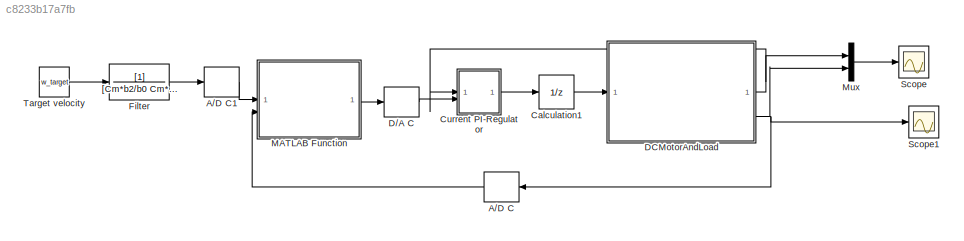
MODEL slx_c8233b17a7fb
KIND model
CONFIG AbsTol = auto
CONFIG EnableMultiTasking = off
CONFIG FixedStep = auto
CONFIG MaxStep = 1e-4
CONFIG MinStep = auto
CONFIG RelTol = 1e-3
CONFIG SampleTimeConstraint = Unconstrained
CONFIG SolverName = ode23t
CONFIG StartTime = 0.0
CONFIG StopTime = Tmdl
BLOCK [ZeroOrderHold] A//D C
  SampleTime = To
BLOCK [ZeroOrderHold] A//D C1
  SampleTime = To
BLOCK [UnitDelay] Calculation1
  HasFrameUpgradeWarning = on
  SampleTime = To/1000
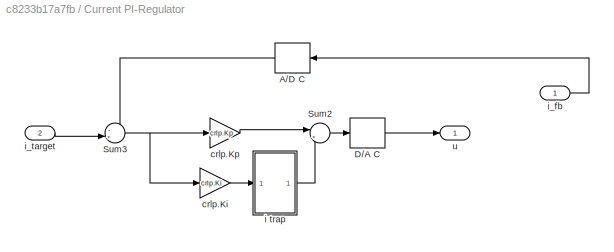
BLOCK [SubSystem] Current PI-Regulator
BLOCK [ZeroOrderHold] Current PI-Regulator/A//D C
  NameLocation = top
  SampleTime = To
BLOCK [ZeroOrderHold] Current PI-Regulator/D//A C
  SampleTime = To
BLOCK [Sum] Current PI-Regulator/Sum2
  Inputs = |++
BLOCK [Sum] Current PI-Regulator/Sum3
  Inputs = -+|
BLOCK [Gain] Current PI-Regulator/crlp.Ki
  Gain = crlp.Ki
BLOCK [Gain] Current PI-Regulator/crlp.Kp
  Gain = crlp.Kp
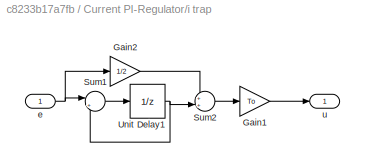
BLOCK [SubSystem] Current PI-Regulator/i trap
BLOCK [Gain] Current PI-Regulator/i trap/Gain1
  Gain = To
BLOCK [Gain] Current PI-Regulator/i trap/Gain2
  Gain = 1/2
BLOCK [Sum] Current PI-Regulator/i trap/Sum1
  Inputs = |++
BLOCK [Sum] Current PI-Regulator/i trap/Sum2
  Inputs = ++|
BLOCK [UnitDelay] Current PI-Regulator/i trap/Unit Delay1
  HasFrameUpgradeWarning = on
  SampleTime = To
BLOCK [Inport] Current PI-Regulator/i trap/e
BLOCK [Outport] Current PI-Regulator/i trap/u
BLOCK [Inport] Current PI-Regulator/i_fb
BLOCK [Inport] Current PI-Regulator/i_target
  Port = 2
BLOCK [Outport] Current PI-Regulator/u
BLOCK [ZeroOrderHold] D//A C
  SampleTime = To
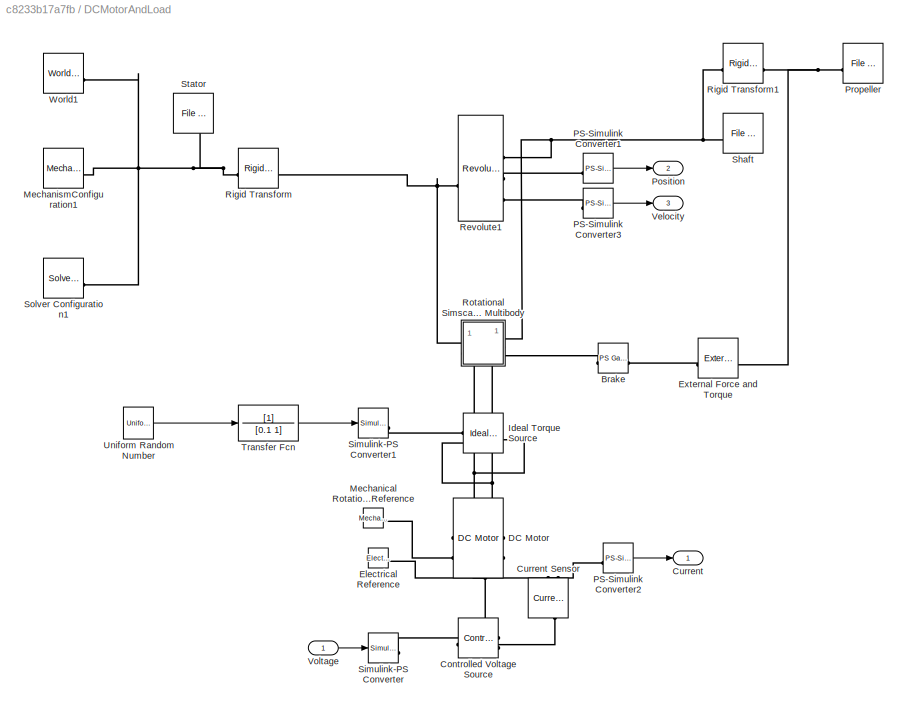
BLOCK [SubSystem] DCMotorAndLoad
BLOCK [Reference] DCMotorAndLoad/Brake  REF=fl_ps_legacy_lib/Legacy Physical
Signals/Functions/PS Gain
  SourceBlock = fl_ps_legacy_lib/Legacy Physical\nSignals/Functions/PS Gain
  SourceType = PS Gain
BLOCK [Reference] DCMotorAndLoad/Controlled Voltage Source  REF=fl_lib/Electrical/Electrical Sources/Controlled Voltage
Source
  NameLocation = top
  SourceBlock = fl_lib/Electrical/Electrical Sources/Controlled Voltage\nSource
  SourceType = Controlled Voltage\nSource
BLOCK [Outport] DCMotorAndLoad/Current
  VectorParamsAs1DForOutWhenUnconnected = off
BLOCK [Reference] DCMotorAndLoad/Current Sensor  REF=fl_lib/Electrical/Electrical Sensors/Current Sensor
  NameLocation = right
  SourceBlock = fl_lib/Electrical/Electrical Sensors/Current Sensor
  SourceType = Current Sensor
BLOCK [Reference] DCMotorAndLoad/DC Motor  REF=ee_lib/Electromechanical/Brushed Motors/DC Motor
  NameLocation = top
  SourceBlock = ee_lib/Electromechanical/Brushed Motors/DC Motor
  SourceType = DC Motor
BLOCK [Reference] DCMotorAndLoad/Electrical Reference  REF=fl_lib/Electrical/Electrical Elements/Electrical Reference
  SourceBlock = fl_lib/Electrical/Electrical Elements/Electrical Reference
  SourceType = Electrical Reference
BLOCK [Reference] DCMotorAndLoad/External Force and Torque  REF=sm_lib/Forces and
Torques/External Force
and Torque
  SourceBlock = sm_lib/Forces and\nTorques/External Force\nand Torque
  SourceType = External Force\nand Torque
BLOCK [Reference] DCMotorAndLoad/Ideal Torque Source  REF=fl_lib/Mechanical/Mechanical Sources/Ideal Torque Source
  SourceBlock = fl_lib/Mechanical/Mechanical Sources/Ideal Torque Source
  SourceType = Ideal Torque Source
BLOCK [Reference] DCMotorAndLoad/Mechanical Rotational Reference  REF=fl_lib/Mechanical/Rotational Elements/Mechanical
Rotational Reference
  NameLocation = top
  SourceBlock = fl_lib/Mechanical/Rotational Elements/Mechanical\nRotational Reference
  SourceType = Mechanical\nRotational Reference
BLOCK [Reference] DCMotorAndLoad/MechanismConfiguration1  REF=sm_lib/Utilities/Mechanism
Configuration
  SourceBlock = sm_lib/Utilities/Mechanism\nConfiguration
  SourceType = Mechanism\nConfiguration
BLOCK [Reference] DCMotorAndLoad/PS-Simulink Converter1  REF=nesl_utility/PS-Simulink
Converter
  SourceBlock = nesl_utility/PS-Simulink\nConverter
  SourceType = PS-Simulink\nConverter
BLOCK [Reference] DCMotorAndLoad/PS-Simulink Converter2  REF=nesl_utility/PS-Simulink
Converter
  SourceBlock = nesl_utility/PS-Simulink\nConverter
  SourceType = PS-Simulink\nConverter
BLOCK [Reference] DCMotorAndLoad/PS-Simulink Converter3  REF=nesl_utility/PS-Simulink
Converter
  SourceBlock = nesl_utility/PS-Simulink\nConverter
  SourceType = PS-Simulink\nConverter
BLOCK [Outport] DCMotorAndLoad/Position
  Port = 2
  VectorParamsAs1DForOutWhenUnconnected = off
BLOCK [Reference] DCMotorAndLoad/Propeller  REF=sm_lib/Body Elements/File Solid
  NameLocation = top
  SourceBlock = sm_lib/Body Elements/File Solid
  SourceType = File Solid
BLOCK [Reference] DCMotorAndLoad/Revolute1  REF=sm_lib/Joints/Revolute Joint
  SourceBlock = sm_lib/Joints/Revolute Joint
  SourceType = Revolute Joint
BLOCK [Reference] DCMotorAndLoad/Rigid Transform  REF=sm_lib/Frames and
Transforms/Rigid
Transform
  SourceBlock = sm_lib/Frames and\nTransforms/Rigid\nTransform
  SourceType = Rigid\nTransform
BLOCK [Reference] DCMotorAndLoad/Rigid Transform1  REF=sm_lib/Frames and
Transforms/Rigid
Transform
  SourceBlock = sm_lib/Frames and\nTransforms/Rigid\nTransform
  SourceType = Rigid\nTransform
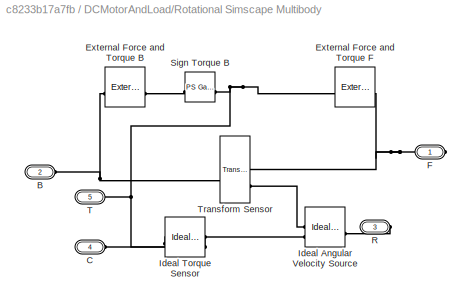
BLOCK [SubSystem] DCMotorAndLoad/Rotational Simscape Multibody
BLOCK [PMIOPort] DCMotorAndLoad/Rotational Simscape Multibody/B
  Port = 2
  Side = Left
BLOCK [PMIOPort] DCMotorAndLoad/Rotational Simscape Multibody/C
  Port = 4
  Side = Left
BLOCK [Reference] DCMotorAndLoad/Rotational Simscape Multibody/External Force and Torque B  REF=sm_lib/Forces and
Torques/External Force
and Torque
  NameLocation = top
  SourceBlock = sm_lib/Forces and\nTorques/External Force\nand Torque
  SourceType = External Force\nand Torque
BLOCK [Reference] DCMotorAndLoad/Rotational Simscape Multibody/External Force and Torque F  REF=sm_lib/Forces and
Torques/External Force
and Torque
  NameLocation = top
  SourceBlock = sm_lib/Forces and\nTorques/External Force\nand Torque
  SourceType = External Force\nand Torque
BLOCK [PMIOPort] DCMotorAndLoad/Rotational Simscape Multibody/F
  Side = Right
BLOCK [Reference] DCMotorAndLoad/Rotational Simscape Multibody/Ideal Angular Velocity Source  REF=fl_lib/Mechanical/Mechanical Sources/Ideal Angular
Velocity Source
  SourceBlock = fl_lib/Mechanical/Mechanical Sources/Ideal Angular\nVelocity Source
  SourceType = Ideal Angular\nVelocity Source
BLOCK [Reference] DCMotorAndLoad/Rotational Simscape Multibody/Ideal Torque Sensor  REF=fl_lib/Mechanical/Mechanical Sensors/Ideal Torque Sensor
  SourceBlock = fl_lib/Mechanical/Mechanical Sensors/Ideal Torque Sensor
  SourceType = Ideal Torque Sensor
BLOCK [PMIOPort] DCMotorAndLoad/Rotational Simscape Multibody/R
  Port = 3
  Side = Right
BLOCK [Reference] DCMotorAndLoad/Rotational Simscape Multibody/Sign Torque B  REF=fl_ps_legacy_lib/Legacy Physical
Signals/Functions/PS Gain
  SourceBlock = fl_ps_legacy_lib/Legacy Physical\nSignals/Functions/PS Gain
  SourceType = PS Gain
BLOCK [PMIOPort] DCMotorAndLoad/Rotational Simscape Multibody/T
  Port = 5
  Side = Right
BLOCK [Reference] DCMotorAndLoad/Rotational Simscape Multibody/Transform Sensor  REF=sm_lib/Frames and
Transforms/Transform
Sensor
  SourceBlock = sm_lib/Frames and\nTransforms/Transform\nSensor
  SourceType = Transform\nSensor
BLOCK [Reference] DCMotorAndLoad/Shaft  REF=sm_lib/Body Elements/File Solid
  SourceBlock = sm_lib/Body Elements/File Solid
  SourceType = File Solid
BLOCK [Reference] DCMotorAndLoad/Simulink-PS Converter  REF=nesl_utility/Simulink-PS
Converter
  SourceBlock = nesl_utility/Simulink-PS\nConverter
  SourceType = Simulink-PS\nConverter
BLOCK [Reference] DCMotorAndLoad/Simulink-PS Converter1  REF=nesl_utility/Simulink-PS
Converter
  SourceBlock = nesl_utility/Simulink-PS\nConverter
  SourceType = Simulink-PS\nConverter
BLOCK [Reference] DCMotorAndLoad/Solver Configuration1  REF=nesl_utility/Solver
Configuration
  SourceBlock = nesl_utility/Solver\nConfiguration
  SourceType = Solver\nConfiguration
BLOCK [Reference] DCMotorAndLoad/Stator  REF=sm_lib/Body Elements/File Solid
  NameLocation = left
  SourceBlock = sm_lib/Body Elements/File Solid
  SourceType = File Solid
BLOCK [TransferFcn] DCMotorAndLoad/Transfer Fcn
  Denominator = [0.1 1]
BLOCK [UniformRandomNumber] DCMotorAndLoad/Uniform Random Number
  SampleTime = 0.001
BLOCK [Outport] DCMotorAndLoad/Velocity
  Port = 3
  VectorParamsAs1DForOutWhenUnconnected = off
BLOCK [Inport] DCMotorAndLoad/Voltage
BLOCK [Reference] DCMotorAndLoad/World1  REF=sm_lib/Frames and
Transforms/World Frame
  SourceBlock = sm_lib/Frames and\nTransforms/World Frame
  SourceType = World Frame
BLOCK [TransferFcn] Filter
  Denominator = [Cm*b2/b0 Cm*b1/b0 Cm]
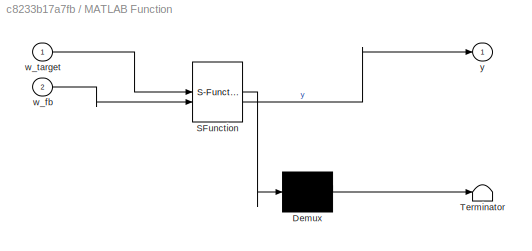
BLOCK [SubSystem] MATLAB Function
  ErrorFcn = Stateflow.Translate.translate
  PermitHierarchicalResolution = ExplicitOnly
  SFBlockType = MATLAB Function
  TreatAsAtomicUnit = on
BLOCK [Demux] MATLAB Function/ Demux 
  Outputs = 1
BLOCK [S-Function] MATLAB Function/ SFunction 
  EnableBusSupport = on
  FunctionName = sf_sfun
  Parameters = Kd,Ki,Kp,To,Tur
  PortCounts = [2 2]
  SFcnIsStateOwnerBlock = off
  SFunctionDeploymentMode = off
  Tag = Stateflow S-Function 2
BLOCK [Terminator] MATLAB Function/ Terminator 
BLOCK [Inport] MATLAB Function/w_fb
  Port = 2
BLOCK [Inport] MATLAB Function/w_target
BLOCK [Outport] MATLAB Function/y
BLOCK [Mux] Mux
  DisplayOption = bar
  Inputs = 2
BLOCK [Scope] Scope
  Floating = off
  NumInputPorts = 1
  ScopeSpecificationString = Simulink.scopes.TimeScopeBlockCfg('CurrentConfiguration', extmgr.ConfigurationSet(extmgr.Configuration('Core','General UI',true),extmgr.Configuration('Core','Source UI',true),extmgr.Configuration('Sources','WiredSimulink',true,'DataLogging',true,'DataLoggingVariableName','i','DataLoggingSaveFormat','Array'),extmgr.Configuration('Visuals','Time Domain',true,'SerializedDisplays',{struct('MinYLimReal...<+1544ch>
BLOCK [Scope] Scope1
  Floating = off
  NumInputPorts = 1
  ScopeSpecificationString = Simulink.scopes.TimeScopeBlockCfg('CurrentConfiguration', extmgr.ConfigurationSet(extmgr.Configuration('Core','General UI',true),extmgr.Configuration('Core','Source UI',true),extmgr.Configuration('Sources','WiredSimulink',true,'DataLoggingVariableName','ScopeData1'),extmgr.Configuration('Visuals','Time Domain',true,'SerializedDisplays',{struct('MinYLimReal','-1.00000','MaxYLimReal','1.00000','YLab...<+1446ch>
BLOCK [Constant] Target velocity
  Value = w_target
LINE A//D C1:1 -> MATLAB Function:1
LINE A//D C:1 -> MATLAB Function:2
LINE Calculation1:1 -> DCMotorAndLoad:1
LINE Current PI-Regulator/A//D C:1 -> Current PI-Regulator/Sum3:1
LINE Current PI-Regulator/D//A C:1 -> Current PI-Regulator/u:1
LINE Current PI-Regulator/Sum2:1 -> Current PI-Regulator/D//A C:1
NET Current PI-Regulator/Sum3:1 -> Current PI-Regulator/crlp.Ki:1, Current PI-Regulator/crlp.Kp:1
LINE Current PI-Regulator/crlp.Ki:1 -> Current PI-Regulator/i trap:1
LINE Current PI-Regulator/crlp.Kp:1 -> Current PI-Regulator/Sum2:1
LINE Current PI-Regulator/i trap/Gain1:1 -> Current PI-Regulator/i trap/u:1
LINE Current PI-Regulator/i trap/Gain2:1 -> Current PI-Regulator/i trap/Sum2:1
LINE Current PI-Regulator/i trap/Sum1:1 -> Current PI-Regulator/i trap/Unit Delay1:1
LINE Current PI-Regulator/i trap/Sum2:1 -> Current PI-Regulator/i trap/Gain1:1
NET Current PI-Regulator/i trap/Unit Delay1:1 -> Current PI-Regulator/i trap/Sum1:2, Current PI-Regulator/i trap/Sum2:2
NET Current PI-Regulator/i trap/e:1 -> Current PI-Regulator/i trap/Gain2:1, Current PI-Regulator/i trap/Sum1:1
LINE Current PI-Regulator/i trap:1 -> Current PI-Regulator/Sum2:2
LINE Current PI-Regulator/i_fb:1 -> Current PI-Regulator/A//D C:1
LINE Current PI-Regulator/i_target:1 -> Current PI-Regulator/Sum3:2
LINE Current PI-Regulator:1 -> Calculation1:1
LINE D//A C:1 -> Current PI-Regulator:2
LINE DCMotorAndLoad/PS-Simulink Converter1:1 -> DCMotorAndLoad/Position:1
LINE DCMotorAndLoad/PS-Simulink Converter2:1 -> DCMotorAndLoad/Current:1
LINE DCMotorAndLoad/PS-Simulink Converter3:1 -> DCMotorAndLoad/Velocity:1
LINE DCMotorAndLoad/Transfer Fcn:1 -> DCMotorAndLoad/Simulink-PS Converter1:1
LINE DCMotorAndLoad/Uniform Random Number:1 -> DCMotorAndLoad/Transfer Fcn:1
LINE DCMotorAndLoad/Voltage:1 -> DCMotorAndLoad/Simulink-PS Converter:1
NET DCMotorAndLoad:1 -> Current PI-Regulator:1, Mux:1
NET DCMotorAndLoad:3 -> A//D C:1, Mux:2, Scope1:1
LINE Filter:1 -> A//D C1:1
LINE MATLAB Function:1 -> D//A C:1
LINE Mux:1 -> Scope:1
LINE Target velocity:1 -> Filter:1
PLINE DCMotorAndLoad/Brake:LConn1 -- DCMotorAndLoad/Rotational Simscape Multibody:RConn3
PLINE DCMotorAndLoad/Brake:RConn1 -- DCMotorAndLoad/External Force and Torque:LConn1
PLINE DCMotorAndLoad/Controlled Voltage Source:LConn1 -- DCMotorAndLoad/Current Sensor:LConn1
PLINE DCMotorAndLoad/Controlled Voltage Source:RConn1 -- DCMotorAndLoad/Simulink-PS Converter:RConn1
PNET net1: DCMotorAndLoad/Controlled Voltage Source:RConn2 -- DCMotorAndLoad/DC Motor:RConn1 -- DCMotorAndLoad/Electrical Reference:LConn1
PLINE DCMotorAndLoad/Current Sensor:RConn1 -- DCMotorAndLoad/PS-Simulink Converter2:LConn1
PLINE DCMotorAndLoad/Current Sensor:RConn2 -- DCMotorAndLoad/DC Motor:LConn1
PNET net2: DCMotorAndLoad/DC Motor:LConn2 -- DCMotorAndLoad/Ideal Torque Source:LConn1 -- DCMotorAndLoad/Rotational Simscape Multibody:RConn2
PNET net3: DCMotorAndLoad/DC Motor:RConn2 -- DCMotorAndLoad/Ideal Torque Source:RConn2 -- DCMotorAndLoad/Mechanical Rotational Reference:LConn1 -- DCMotorAndLoad/Rotational Simscape Multibody:LConn2
PNET net4: DCMotorAndLoad/External Force and Torque:RConn1 -- DCMotorAndLoad/Propeller:RConn1 -- DCMotorAndLoad/Rigid Transform1:RConn1
PLINE DCMotorAndLoad/Ideal Torque Source:RConn1 -- DCMotorAndLoad/Simulink-PS Converter1:RConn1
PNET net5: DCMotorAndLoad/MechanismConfiguration1:RConn1 -- DCMotorAndLoad/Rigid Transform:LConn1 -- DCMotorAndLoad/Solver Configuration1:RConn1 -- DCMotorAndLoad/Stator:RConn1 -- DCMotorAndLoad/World1:RConn1
PLINE DCMotorAndLoad/PS-Simulink Converter1:LConn1 -- DCMotorAndLoad/Revolute1:RConn2
PLINE DCMotorAndLoad/PS-Simulink Converter3:LConn1 -- DCMotorAndLoad/Revolute1:RConn3
PNET net6: DCMotorAndLoad/Revolute1:LConn1 -- DCMotorAndLoad/Rigid Transform:RConn1 -- DCMotorAndLoad/Rotational Simscape Multibody:LConn1
PNET net7: DCMotorAndLoad/Revolute1:RConn1 -- DCMotorAndLoad/Rigid Transform1:LConn1 -- DCMotorAndLoad/Rotational Simscape Multibody:RConn1 -- DCMotorAndLoad/Shaft:RConn1
PNET net8: DCMotorAndLoad/Rotational Simscape Multibody/B:RConn1 -- DCMotorAndLoad/Rotational Simscape Multibody/External Force and Torque B:RConn1 -- DCMotorAndLoad/Rotational Simscape Multibody/Transform Sensor:LConn1
PLINE DCMotorAndLoad/Rotational Simscape Multibody/C:RConn1 -- DCMotorAndLoad/Rotational Simscape Multibody/Ideal Torque Sensor:RConn1
PLINE DCMotorAndLoad/Rotational Simscape Multibody/External Force and Torque B:LConn1 -- DCMotorAndLoad/Rotational Simscape Multibody/Sign Torque B:RConn1
PNET net9: DCMotorAndLoad/Rotational Simscape Multibody/External Force and Torque F:LConn1 -- DCMotorAndLoad/Rotational Simscape Multibody/Ideal Torque Sensor:RConn2 -- DCMotorAndLoad/Rotational Simscape Multibody/Sign Torque B:LConn1 -- DCMotorAndLoad/Rotational Simscape Multibody/T:RConn1
PNET net10: DCMotorAndLoad/Rotational Simscape Multibody/External Force and Torque F:RConn1 -- DCMotorAndLoad/Rotational Simscape Multibody/F:RConn1 -- DCMotorAndLoad/Rotational Simscape Multibody/Transform Sensor:RConn1
PLINE DCMotorAndLoad/Rotational Simscape Multibody/Ideal Angular Velocity Source:LConn1 -- DCMotorAndLoad/Rotational Simscape Multibody/R:RConn1
PLINE DCMotorAndLoad/Rotational Simscape Multibody/Ideal Angular Velocity Source:RConn1 -- DCMotorAndLoad/Rotational Simscape Multibody/Transform Sensor:RConn2
PLINE DCMotorAndLoad/Rotational Simscape Multibody/Ideal Angular Velocity Source:RConn2 -- DCMotorAndLoad/Rotational Simscape Multibody/Ideal Torque Sensor:LConn1
note: NET lines group one-source signal fan-out (src -> all destinations, sorted); 1:1 wires keep LINE; PNET lines group multi-terminal physical nets as a canonical sorted terminal list (undirected conserving connections); 2-terminal nets keep the pairwise PLINE form
CHART MATLAB Function states=1 transitions=1
  STATE_LABEL 'eML_blk_kernel()'
  STATE_LABEL 'SCRIPT:\nfunction y = splp_PID(w_target, w_fb, To, Tur, Kp, Ki, Kd)\n\npersistent u_old e_old ud\nif isempty(u_old)\n    u_old = 0;\n    e_old = 0;\n    ud = 0;\nend\n\ne = w_target - w_fb;\nu = u_old + (e + e_old)*Ki*To/2;\nud = 1/(To + 2*Tur)*(2*(e - e_old) - (To - 2*Tur)*ud);\ny = Kp*e + u + Kd*ud;\n\nu_old = u;\ne_old = e;'
CHART  states=0 transitions=0
